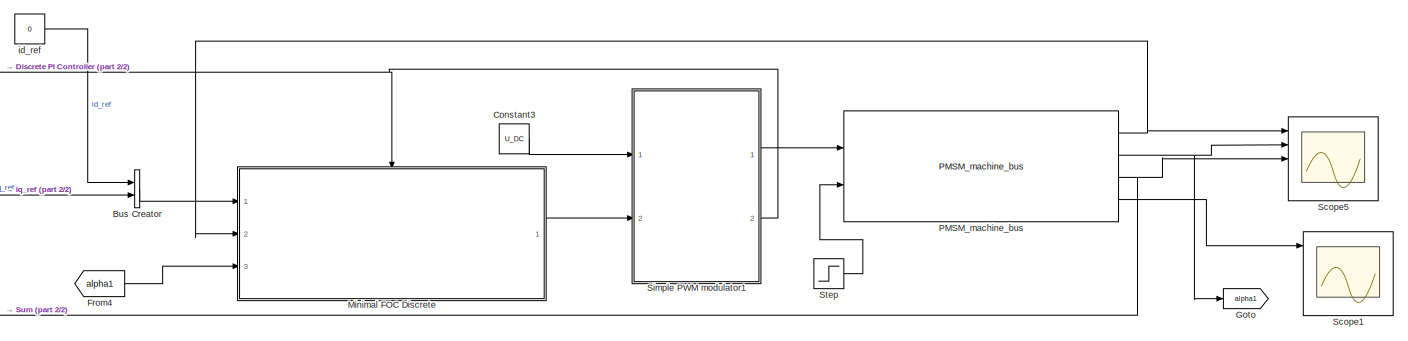
[diagram: root canvas - part 1/2, right side, full height]
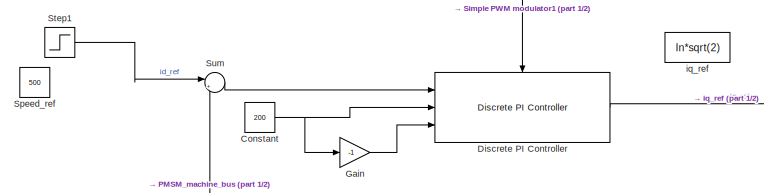
[diagram: root canvas - part 2/2, middle left region]
MODEL slx_49d1799fcf7b
KIND model
CONFIG AbsTol = auto
CONFIG EnableMultiTasking = off
CONFIG FixedStep = auto
CONFIG MaxStep = 1e-6
CONFIG MinStep = auto
CONFIG RelTol = 1e-3
CONFIG SampleTimeConstraint = Unconstrained
CONFIG Solver = VariableStepAuto
CONFIG SolverName = VariableStepAuto
CONFIG StartTime = 0.0
CONFIG StopTime = 1.5
BLOCK [BusCreator] Bus Creator
  DisplayOption = bar
  InheritFromInputs = on
  Inputs = 2
  Ports = [2, 1]
BLOCK [Constant] Constant
  Value = 200
BLOCK [Constant] Constant3
  Value = U_DC
BLOCK [Reference] Discrete PI Controller  REF=controllers/Discrete PI Controller  (lib defined in mdl_0f1bdf7b97cc, mdl_b570f3ba1b2b, +8 more)
  Ports = [3, 1, 0, 1]
  SourceBlock = controllers/Discrete PI Controller
  SourceType = Continous PI Controller
BLOCK [From] From4
  GotoTag = alpha1
BLOCK [Gain] Gain
  Gain = -1
  OutDataTypeStr = Inherit: Inherit via internal rule
  ParamDataTypeStr = Inherit: Inherit via internal rule
  SaturateOnIntegerOverflow = off
BLOCK [Goto] Goto
  GotoTag = alpha1
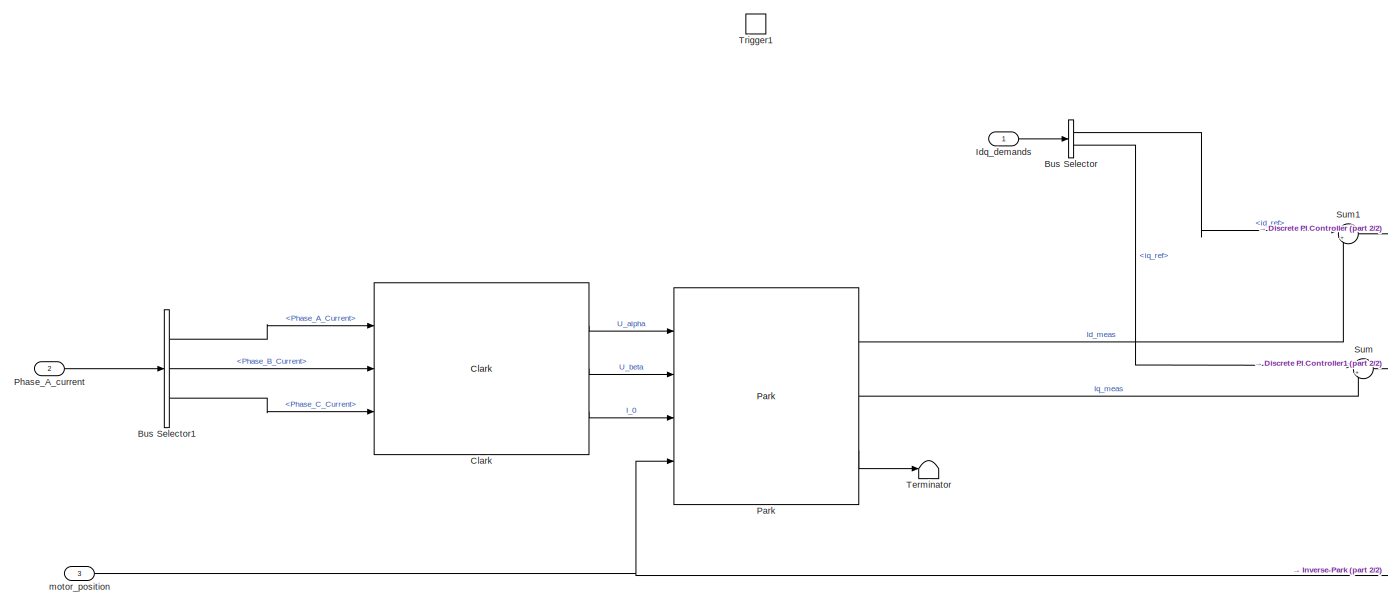
[diagram: Minimal FOC Discrete - part 1/2, left side, full height]
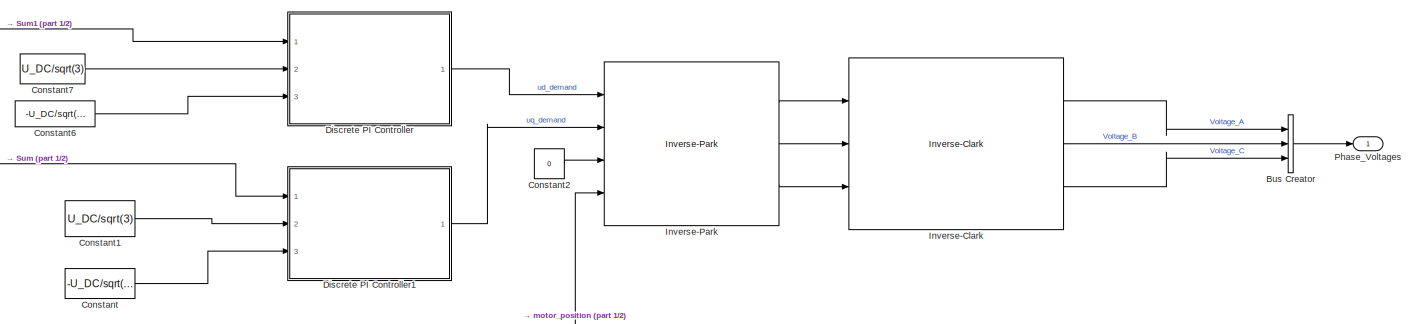
[diagram: Minimal FOC Discrete - part 2/2, middle right region]
BLOCK [SubSystem] Minimal FOC Discrete
  AncestorBlock = controllers/Minimal FOC Discrete
  Ports = [3, 1, 0, 1]
  RequestExecContextInheritance = off
BLOCK [BusCreator] Minimal FOC Discrete/Bus Creator
  DisplayOption = bar
  InheritFromInputs = on
  Inputs = 3
  Ports = [3, 1]
BLOCK [BusSelector] Minimal FOC Discrete/Bus Selector
  OutputAsBus = off
  OutputSignals = id_ref,iq_ref
  Ports = [1, 2]
BLOCK [BusSelector] Minimal FOC Discrete/Bus Selector1
  OutputAsBus = off
  OutputSignals = Phase_A_Current,Phase_B_Current,Phase_C_Current
  Ports = [1, 3]
BLOCK [Reference] Minimal FOC Discrete/Clark  REF=coordinate_transformations/Clark  (lib defined in slx_d357c885b4a9)
  Ports = [3, 3]
  SourceBlock = coordinate_transformations/Clark
  SourceType = SubSystem
BLOCK [Constant] Minimal FOC Discrete/Constant
  Value = -U_DC/sqrt(3)
BLOCK [Constant] Minimal FOC Discrete/Constant1
  Value = U_DC/sqrt(3)
BLOCK [Constant] Minimal FOC Discrete/Constant2
  Value = 0
BLOCK [Constant] Minimal FOC Discrete/Constant6
  Value = -U_DC/sqrt(3)
BLOCK [Constant] Minimal FOC Discrete/Constant7
  Value = U_DC/sqrt(3)
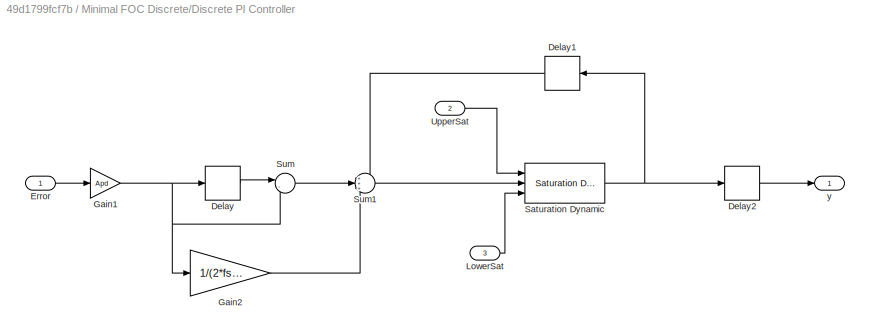
BLOCK [SubSystem] Minimal FOC Discrete/Discrete PI Controller
  AncestorBlock = controllers/Discrete PI Controller
  Ports = [3, 1]
  RequestExecContextInheritance = off
BLOCK [Delay] Minimal FOC Discrete/Discrete PI Controller/Delay
  DelayLength = 1
  InputPortMap = u0
  Ports = [1, 1]
BLOCK [Delay] Minimal FOC Discrete/Discrete PI Controller/Delay1
  DelayLength = 1
  InputPortMap = u0
  Ports = [1, 1]
BLOCK [Delay] Minimal FOC Discrete/Discrete PI Controller/Delay2
  DelayLength = 1
  InputPortMap = u0
  Ports = [1, 1]
BLOCK [Inport] Minimal FOC Discrete/Discrete PI Controller/Error
  IconDisplay = Port number
BLOCK [Gain] Minimal FOC Discrete/Discrete PI Controller/Gain1
  Gain = Apd
  OutDataTypeStr = Inherit: Inherit via internal rule
  ParamDataTypeStr = Inherit: Inherit via internal rule
  SaturateOnIntegerOverflow = off
BLOCK [Gain] Minimal FOC Discrete/Discrete PI Controller/Gain2
  Gain = 1/(2*fs*Tid)
  OutDataTypeStr = Inherit: Inherit via internal rule
  ParamDataTypeStr = Inherit: Inherit via internal rule
  SaturateOnIntegerOverflow = off
BLOCK [Inport] Minimal FOC Discrete/Discrete PI Controller/LowerSat
  IconDisplay = Port number
  Port = 3
BLOCK [Reference] Minimal FOC Discrete/Discrete PI Controller/Saturation Dynamic  REF=simulink/Discontinuities/Saturation
Dynamic
  Ports = [3, 1]
  SourceBlock = simulink/Discontinuities/Saturation\nDynamic
  SourceProductBaseCode = SL
  SourceProductName = Simulink
  SourceType = Saturation Dynamic
BLOCK [Sum] Minimal FOC Discrete/Discrete PI Controller/Sum
  IconShape = round
  InputSameDT = off
  Inputs = |-+
  OutDataTypeStr = Inherit: Inherit via internal rule
  Ports = [2, 1]
  SaturateOnIntegerOverflow = off
BLOCK [Sum] Minimal FOC Discrete/Discrete PI Controller/Sum1
  IconShape = round
  InputSameDT = off
  Inputs = +++
  OutDataTypeStr = Inherit: Inherit via internal rule
  Ports = [3, 1]
  SaturateOnIntegerOverflow = off
BLOCK [Inport] Minimal FOC Discrete/Discrete PI Controller/UpperSat
  IconDisplay = Port number
  Port = 2
BLOCK [Outport] Minimal FOC Discrete/Discrete PI Controller/y
  IconDisplay = Port number
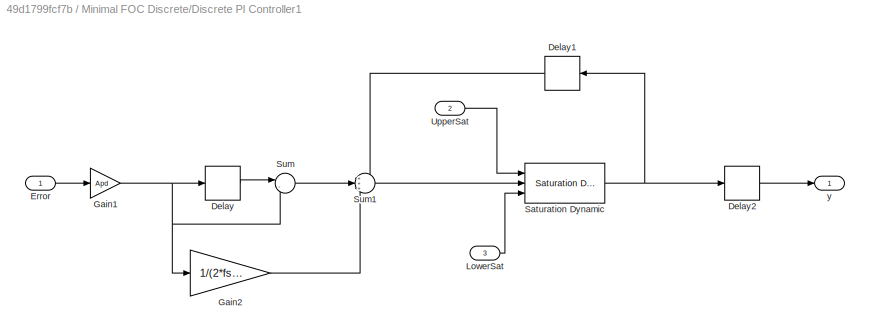
BLOCK [SubSystem] Minimal FOC Discrete/Discrete PI Controller1
  AncestorBlock = controllers/Discrete PI Controller
  Ports = [3, 1]
  RequestExecContextInheritance = off
BLOCK [Delay] Minimal FOC Discrete/Discrete PI Controller1/Delay
  DelayLength = 1
  InputPortMap = u0
  Ports = [1, 1]
BLOCK [Delay] Minimal FOC Discrete/Discrete PI Controller1/Delay1
  DelayLength = 1
  InputPortMap = u0
  Ports = [1, 1]
BLOCK [Delay] Minimal FOC Discrete/Discrete PI Controller1/Delay2
  DelayLength = 1
  InputPortMap = u0
  Ports = [1, 1]
BLOCK [Inport] Minimal FOC Discrete/Discrete PI Controller1/Error
  IconDisplay = Port number
BLOCK [Gain] Minimal FOC Discrete/Discrete PI Controller1/Gain1
  Gain = Apd
  OutDataTypeStr = Inherit: Inherit via internal rule
  ParamDataTypeStr = Inherit: Inherit via internal rule
  SaturateOnIntegerOverflow = off
BLOCK [Gain] Minimal FOC Discrete/Discrete PI Controller1/Gain2
  Gain = 1/(2*fs*Tid)
  OutDataTypeStr = Inherit: Inherit via internal rule
  ParamDataTypeStr = Inherit: Inherit via internal rule
  SaturateOnIntegerOverflow = off
BLOCK [Inport] Minimal FOC Discrete/Discrete PI Controller1/LowerSat
  IconDisplay = Port number
  Port = 3
BLOCK [Reference] Minimal FOC Discrete/Discrete PI Controller1/Saturation Dynamic  REF=simulink/Discontinuities/Saturation
Dynamic
  Ports = [3, 1]
  SourceBlock = simulink/Discontinuities/Saturation\nDynamic
  SourceProductBaseCode = SL
  SourceProductName = Simulink
  SourceType = Saturation Dynamic
BLOCK [Sum] Minimal FOC Discrete/Discrete PI Controller1/Sum
  IconShape = round
  InputSameDT = off
  Inputs = |-+
  OutDataTypeStr = Inherit: Inherit via internal rule
  Ports = [2, 1]
  SaturateOnIntegerOverflow = off
BLOCK [Sum] Minimal FOC Discrete/Discrete PI Controller1/Sum1
  IconShape = round
  InputSameDT = off
  Inputs = +++
  OutDataTypeStr = Inherit: Inherit via internal rule
  Ports = [3, 1]
  SaturateOnIntegerOverflow = off
BLOCK [Inport] Minimal FOC Discrete/Discrete PI Controller1/UpperSat
  IconDisplay = Port number
  Port = 2
BLOCK [Outport] Minimal FOC Discrete/Discrete PI Controller1/y
  IconDisplay = Port number
BLOCK [Inport] Minimal FOC Discrete/Idq_demands
  IconDisplay = Port number
BLOCK [Reference] Minimal FOC Discrete/Inverse-Clark  REF=coordinate_transformations/Inverse-Clark  (lib defined in slx_d357c885b4a9)
  Ports = [3, 3]
  SourceBlock = coordinate_transformations/Inverse-Clark
  SourceType = SubSystem
BLOCK [Reference] Minimal FOC Discrete/Inverse-Park  REF=coordinate_transformations/Inverse-Park  (lib defined in slx_d357c885b4a9)
  Ports = [4, 3]
  SourceBlock = coordinate_transformations/Inverse-Park
  SourceType = SubSystem
BLOCK [Reference] Minimal FOC Discrete/Park  REF=coordinate_transformations/Park  (lib defined in slx_d357c885b4a9)
  Ports = [4, 3]
  SourceBlock = coordinate_transformations/Park
  SourceType = SubSystem
BLOCK [Inport] Minimal FOC Discrete/Phase_A_current
  IconDisplay = Port number
  Port = 2
BLOCK [Outport] Minimal FOC Discrete/Phase_Voltages
  IconDisplay = Port number
BLOCK [Sum] Minimal FOC Discrete/Sum
  IconShape = round
  InputSameDT = off
  Inputs = |+-
  OutDataTypeStr = Inherit: Inherit via internal rule
  Ports = [2, 1]
  SaturateOnIntegerOverflow = off
BLOCK [Sum] Minimal FOC Discrete/Sum1
  IconShape = round
  InputSameDT = off
  Inputs = |+-
  OutDataTypeStr = Inherit: Inherit via internal rule
  Ports = [2, 1]
  SaturateOnIntegerOverflow = off
BLOCK [Terminator] Minimal FOC Discrete/Terminator
BLOCK [TriggerPort] Minimal FOC Discrete/Trigger1
  PortDimensions = 1
  Ports = []
  StatesWhenEnabling = held
  TriggerType = either
  VariantControl = Variant
BLOCK [Inport] Minimal FOC Discrete/motor_position
  IconDisplay = Port number
  Port = 3
BLOCK [Reference] PMSM_machine_bus  REF=PE_components/PMSM_machine_bus
  Ports = [2, 4]
  SourceBlock = PE_components/PMSM_machine_bus
  SourceType = SubSystem
BLOCK [Scope] Scope1
  Floating = off
  NumInputPorts = 5
  Ports = [5]
  ScopeSpecificationString = Simulink.scopes.TimeScopeBlockCfg('CurrentConfiguration', extmgr.ConfigurationSet(extmgr.Configuration('Core','General UI',true),extmgr.Configuration('Core','Source UI',true),extmgr.Configuration('Sources','WiredSimulink',true,'DataLoggingVariableName','ScopeData1'),extmgr.Configuration('Visuals','Time Domain',true,'SerializedDisplays',{struct('MinYLimReal','-280.47194','MaxYLimReal','279.479','YL...<+2453ch>
BLOCK [Scope] Scope5
  Floating = off
  NumInputPorts = 5
  Ports = [5]
  ScopeSpecificationString = Simulink.scopes.TimeScopeBlockCfg('CurrentConfiguration', extmgr.ConfigurationSet(extmgr.Configuration('Core','General UI',true),extmgr.Configuration('Core','Source UI',true),extmgr.Configuration('Sources','WiredSimulink',true,'DataLoggingVariableName','ScopeData5'),extmgr.Configuration('Visuals','Time Domain',true,'SerializedDisplays',{struct('MinYLimReal','-342.68979','MaxYLimReal','951.18667','...<+2437ch>
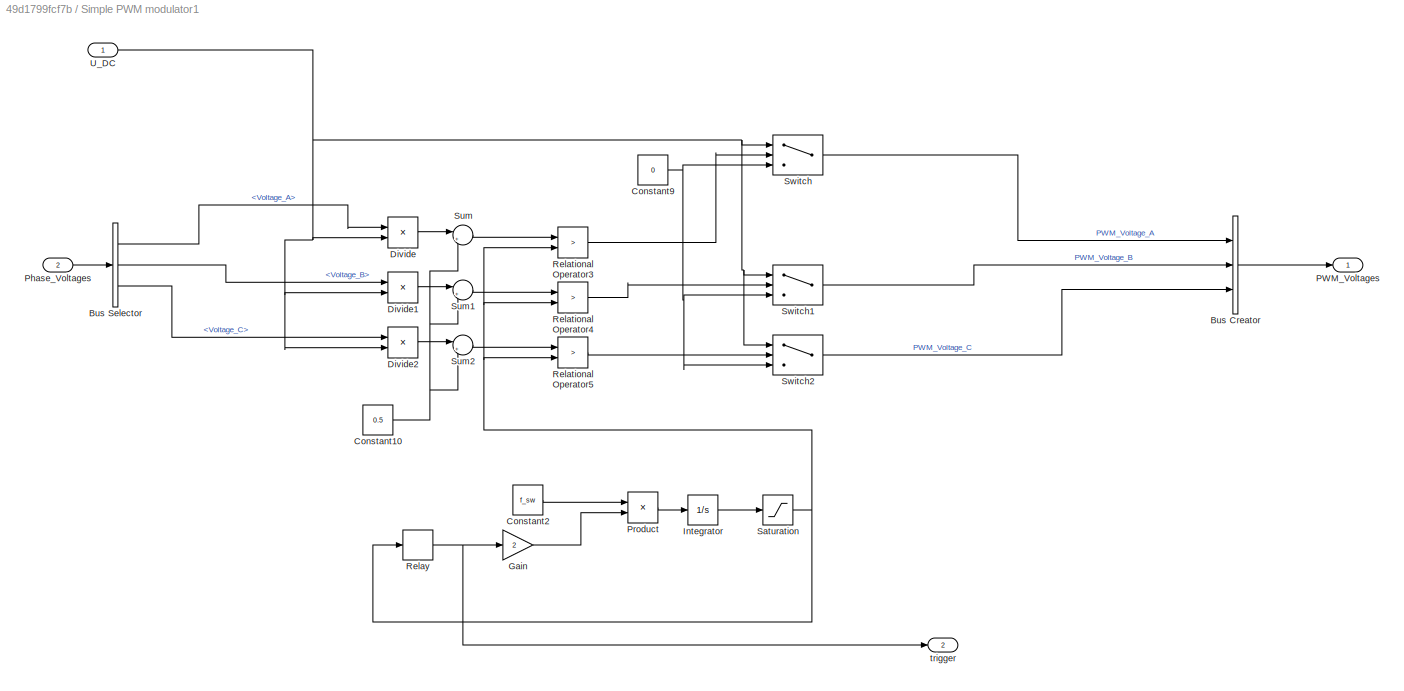
BLOCK [SubSystem] Simple PWM modulator1
  AncestorBlock = controllers/Simple PWM modulator
  Ports = [2, 2]
  RequestExecContextInheritance = off
BLOCK [BusCreator] Simple PWM modulator1/Bus Creator
  DisplayOption = bar
  InheritFromInputs = on
  Inputs = 3
  Ports = [3, 1]
BLOCK [BusSelector] Simple PWM modulator1/Bus Selector
  OutputAsBus = off
  OutputSignals = Voltage_A,Voltage_B,Voltage_C
  Ports = [1, 3]
BLOCK [Constant] Simple PWM modulator1/Constant10
  Value = 0.5
BLOCK [Constant] Simple PWM modulator1/Constant2
  Value = f_sw
BLOCK [Constant] Simple PWM modulator1/Constant9
  Value = 0
BLOCK [Product] Simple PWM modulator1/Divide
  InputSameDT = off
  Inputs = */
  OutDataTypeStr = Inherit: Inherit via internal rule
  Ports = [2, 1]
  RndMeth = Floor
  SaturateOnIntegerOverflow = off
BLOCK [Product] Simple PWM modulator1/Divide1
  InputSameDT = off
  Inputs = */
  OutDataTypeStr = Inherit: Inherit via internal rule
  Ports = [2, 1]
  RndMeth = Floor
  SaturateOnIntegerOverflow = off
BLOCK [Product] Simple PWM modulator1/Divide2
  InputSameDT = off
  Inputs = */
  OutDataTypeStr = Inherit: Inherit via internal rule
  Ports = [2, 1]
  RndMeth = Floor
  SaturateOnIntegerOverflow = off
BLOCK [Gain] Simple PWM modulator1/Gain
  Gain = 2
  OutDataTypeStr = Inherit: Inherit via internal rule
  ParamDataTypeStr = Inherit: Inherit via internal rule
  SaturateOnIntegerOverflow = off
BLOCK [Integrator] Simple PWM modulator1/Integrator
  Ports = [1, 1]
BLOCK [Outport] Simple PWM modulator1/PWM_Voltages
  IconDisplay = Port number
BLOCK [Inport] Simple PWM modulator1/Phase_Voltages
  IconDisplay = Port number
  Port = 2
BLOCK [Product] Simple PWM modulator1/Product
  InputSameDT = off
  OutDataTypeStr = Inherit: Inherit via internal rule
  Ports = [2, 1]
  RndMeth = Floor
  SaturateOnIntegerOverflow = off
BLOCK [RelationalOperator] Simple PWM modulator1/Relational Operator3
  InputSameDT = off
  Operator = >
  OutDataTypeStr = boolean
  Ports = [2, 1]
  RndMeth = Simplest
BLOCK [RelationalOperator] Simple PWM modulator1/Relational Operator4
  InputSameDT = off
  Operator = >
  OutDataTypeStr = boolean
  Ports = [2, 1]
  RndMeth = Simplest
BLOCK [RelationalOperator] Simple PWM modulator1/Relational Operator5
  InputSameDT = off
  Operator = >
  OutDataTypeStr = boolean
  Ports = [2, 1]
  RndMeth = Simplest
BLOCK [Relay] Simple PWM modulator1/Relay
  OffOutputValue = 1
  OffSwitchValue = 0
  OnOutputValue = -1
  OnSwitchValue = 1
BLOCK [Saturate] Simple PWM modulator1/Saturation
  InputPortMap = u0
  LowerLimit = 0
  Ports = [1, 1]
  UpperLimit = 1
BLOCK [Sum] Simple PWM modulator1/Sum
  IconShape = round
  InputSameDT = off
  Inputs = |++
  OutDataTypeStr = Inherit: Inherit via internal rule
  Ports = [2, 1]
  SaturateOnIntegerOverflow = off
BLOCK [Sum] Simple PWM modulator1/Sum1
  IconShape = round
  InputSameDT = off
  Inputs = |++
  OutDataTypeStr = Inherit: Inherit via internal rule
  Ports = [2, 1]
  SaturateOnIntegerOverflow = off
BLOCK [Sum] Simple PWM modulator1/Sum2
  IconShape = round
  InputSameDT = off
  Inputs = |++
  OutDataTypeStr = Inherit: Inherit via internal rule
  Ports = [2, 1]
  SaturateOnIntegerOverflow = off
BLOCK [Switch] Simple PWM modulator1/Switch
  InputSameDT = off
  SaturateOnIntegerOverflow = off
  Threshold = 1
BLOCK [Switch] Simple PWM modulator1/Switch1
  InputSameDT = off
  SaturateOnIntegerOverflow = off
  Threshold = 1
BLOCK [Switch] Simple PWM modulator1/Switch2
  InputSameDT = off
  SaturateOnIntegerOverflow = off
  Threshold = 1
BLOCK [Inport] Simple PWM modulator1/U_DC
  IconDisplay = Port number
BLOCK [Outport] Simple PWM modulator1/trigger
  IconDisplay = Port number
  Port = 2
BLOCK [Constant] Speed_ref
  Value = 500
BLOCK [Step] Step
  After = 60
  SampleTime = 0
  Time = 0.5
BLOCK [Step] Step1
  After = 1000
  Before = 500
  SampleTime = 0
  Time = 0.75
BLOCK [Sum] Sum
  IconShape = round
  InputSameDT = off
  Inputs = |+-
  OutDataTypeStr = Inherit: Inherit via internal rule
  Ports = [2, 1]
  SaturateOnIntegerOverflow = off
BLOCK [Constant] id_ref
  Value = 0
BLOCK [Constant] iq_ref
  Value = In*sqrt(2)
LINE Bus Creator:1 -> Minimal FOC Discrete:1
LINE Constant3:1 -> Simple PWM modulator1:1
NET Constant:1 -> Discrete PI Controller:2, Gain:1
LINE Discrete PI Controller:1 -> Bus Creator:2
LINE From4:1 -> Minimal FOC Discrete:3
LINE Gain:1 -> Discrete PI Controller:3
LINE Minimal FOC Discrete:1 -> Simple PWM modulator1:2
NET PMSM_machine_bus:1 -> Minimal FOC Discrete:2, Scope5:1
NET PMSM_machine_bus:2 -> Goto:1, Scope5:2
NET PMSM_machine_bus:3 -> Scope5:3, Sum:2
LINE PMSM_machine_bus:4 -> Scope1:1
LINE Simple PWM modulator1:1 -> PMSM_machine_bus:1
NET Simple PWM modulator1:2 -> Discrete PI Controller:trigger, Minimal FOC Discrete:trigger
LINE Step1:1 -> Sum:1
LINE Step:1 -> PMSM_machine_bus:2
LINE Sum:1 -> Discrete PI Controller:1
LINE id_ref:1 -> Bus Creator:1
note: NET lines group one-source signal fan-out (src -> all destinations, sorted); 1:1 wires keep LINE
